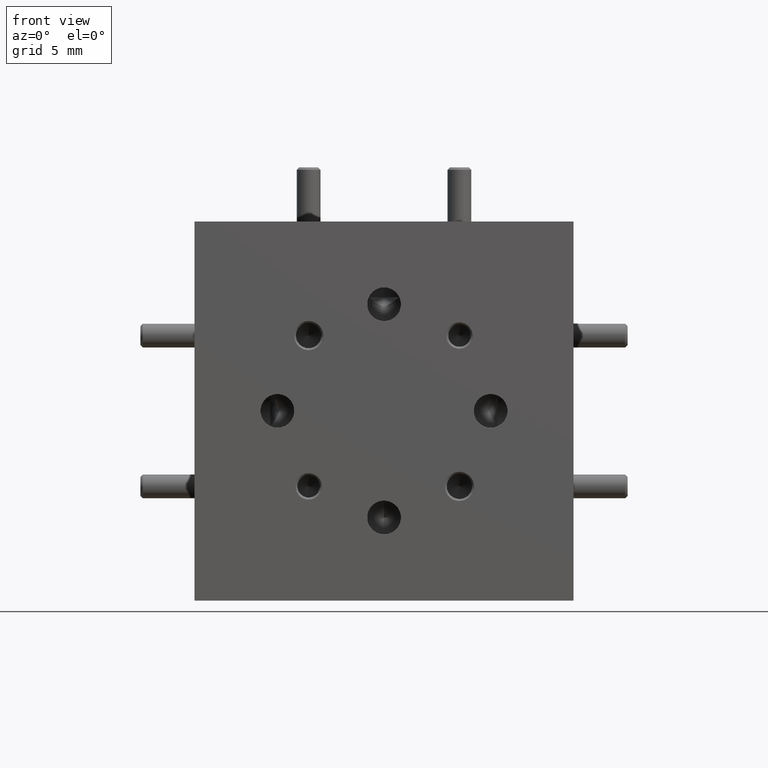
[diagram: clean part render]
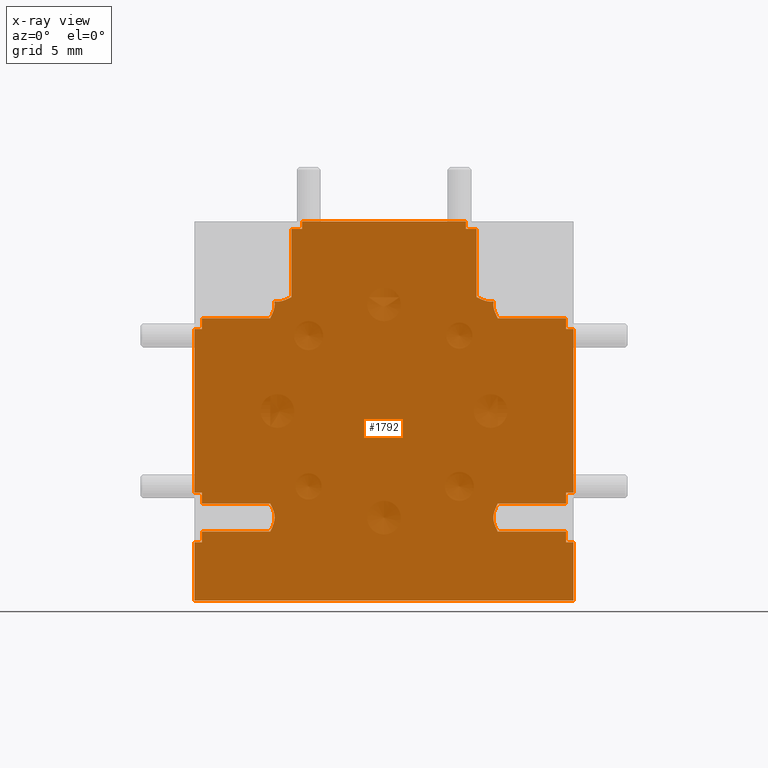
[diagram: x-ray — body ghosted, one internal face saturated and labeled with its STEP entity id]
A machine part, front view, then the same camera in x-ray: the body is ghosted and one INTERNAL B-rep face — a face not visible from any outside direction — is saturated and labeled: STEP entity #1792.
In plain terms, the highlighted planar face has unit normal (0, 1, 0).
Its self-contained STEP definition (entity closure, byte-faithful):
#15 = CARTESIAN_POINT ( 'NONE',  ( -0.4800000000000001500, 0.4749999999999999800, -0.3466334841531100200 ) ) ;
#36 = CARTESIAN_POINT ( 'NONE',  ( 0.2965307483112154000, 0.4749999999999999800, 0.2514155878293677900 ) ) ;
#54 = B_SPLINE_CURVE_WITH_KNOTS ( 'NONE', 3,
 ( #6234, #6325, #7768, #3978, #3907, #1699, #36, #9321 ),
 .UNSPECIFIED., .F., .F.,
 ( 4, 2, 2, 4 ),
 ( 5.030097432650708100E-011, 0.0002965783494396781300, 0.0005931566485783819300, 0.001186313246855788700 ),
 .UNSPECIFIED. ) ;
#109 = DIRECTION ( 'NONE',  ( 1.000000000000000000, 0.0000000000000000000, -0.0000000000000000000 ) ) ;
#146 = ORIENTED_EDGE ( 'NONE', *, *, #5803, .T. ) ;
#177 = CARTESIAN_POINT ( 'NONE',  ( -0.5000000000000001100, 0.4749999999999999800, 0.5000000000000000000 ) ) ;
#232 = CARTESIAN_POINT ( 'NONE',  ( -0.2882762222135522000, 0.4750000000000000300, -0.2747830409453189100 ) ) ;
#236 = CARTESIAN_POINT ( 'NONE',  ( -0.2158665158468881500, 0.4749999999999999800, 0.5000000000000005600 ) ) ;
#247 = VERTEX_POINT ( 'NONE', #15 ) ;
#308 = VECTOR ( 'NONE', #2067, 39.37007874015748100 ) ;
#313 = ORIENTED_EDGE ( 'NONE', *, *, #6894, .F. ) ;
#324 = VECTOR ( 'NONE', #109, 39.37007874015748100 ) ;
#335 = EDGE_CURVE ( 'NONE', #3954, #4123, #3824, .T. ) ;
#368 = ORIENTED_EDGE ( 'NONE', *, *, #3213, .T. ) ;
#385 = CARTESIAN_POINT ( 'NONE',  ( -0.4800000000000001500, 0.4749999999999999800, -0.2812499999999999400 ) ) ;
#447 = EDGE_CURVE ( 'NONE', #5707, #1050, #9416, .T. ) ;
#500 = CARTESIAN_POINT ( 'NONE',  ( -0.2584573353643245800, 0.4750000000000000300, 0.2932285807804885200 ) ) ;
#531 = CARTESIAN_POINT ( 'NONE',  ( -0.2889859517562664600, 0.4749999973121388200, 0.2889859535169426700 ) ) ;
#533 = ORIENTED_EDGE ( 'NONE', *, *, #2202, .F. ) ;
#549 = DIRECTION ( 'NONE',  ( -1.000000000000000000, -0.0000000000000000000, 0.0000000000000000000 ) ) ;
#606 = CARTESIAN_POINT ( 'NONE',  ( 0.5000000000000000000, 0.4749999999999999800, 0.2158665158468898400 ) ) ;
#643 = EDGE_CURVE ( 'NONE', #7085, #247, #4660, .T. ) ;
#712 = ORIENTED_EDGE ( 'NONE', *, *, #4511, .T. ) ;
#722 = CARTESIAN_POINT ( 'NONE',  ( 0.2734059510794968300, 0.4749999999999999800, 0.2888356291180106400 ) ) ;
#759 = CARTESIAN_POINT ( 'NONE',  ( -0.2158665158468882100, 0.4749999999999999800, 0.0000000000000000000 ) ) ;
#791 = AXIS2_PLACEMENT_3D ( 'NONE', #7490, #3682, #4484 ) ;
#814 = VERTEX_POINT ( 'NONE', #3378 ) ;
#896 = EDGE_CURVE ( 'NONE', #3000, #2679, #2588, .T. ) ;
#915 = EDGE_CURVE ( 'NONE', #814, #9484, #7696, .T. ) ;
#962 = DIRECTION ( 'NONE',  ( -0.0000000000000000000, 0.0000000000000000000, -1.000000000000000000 ) ) ;
#1003 = ORIENTED_EDGE ( 'NONE', *, *, #6435, .T. ) ;
#1018 = VERTEX_POINT ( 'NONE', #5859 ) ;
#1032 = CARTESIAN_POINT ( 'NONE',  ( -0.4799999999999998700, 0.4749999999999999800, 0.2158665158468901500 ) ) ;
#1050 = VERTEX_POINT ( 'NONE', #531 ) ;
#1060 = ORIENTED_EDGE ( 'NONE', *, *, #643, .T. ) ;
#1091 = CARTESIAN_POINT ( 'NONE',  ( 0.4799999999999998700, 0.4749999999999999800, -0.2812500000000002800 ) ) ;
#1114 = VERTEX_POINT ( 'NONE', #7969 ) ;
#1141 = ORIENTED_EDGE ( 'NONE', *, *, #447, .T. ) ;
#1142 = DIRECTION ( 'NONE',  ( 1.000000000000000000, 0.0000000000000000000, -0.0000000000000000000 ) ) ;
#1164 = ORIENTED_EDGE ( 'NONE', *, *, #9252, .T. ) ;
#1183 = PLANE ( 'NONE',  #791 ) ;
#1212 = VECTOR ( 'NONE', #1142, 39.37007874015748100 ) ;
#1231 = CARTESIAN_POINT ( 'NONE',  ( 0.0000000000000000000, 0.4749999999999999800, -0.2444362797316007000 ) ) ;
#1246 = VERTEX_POINT ( 'NONE', #2008 ) ;
#1281 = CARTESIAN_POINT ( 'NONE',  ( 0.0000000000000000000, 0.4749999999999999800, -0.3466334841531100200 ) ) ;
#1293 = VERTEX_POINT ( 'NONE', #2811 ) ;
#1324 = CARTESIAN_POINT ( 'NONE',  ( -0.5000000000000001100, 0.4749999999999999800, -0.3466334841531100700 ) ) ;
#1350 = CARTESIAN_POINT ( 'NONE',  ( 0.4799999999999998700, 0.4749999999999999800, -0.2812500000000002800 ) ) ;
#1379 = VERTEX_POINT ( 'NONE', #5315 ) ;
#1410 = DIRECTION ( 'NONE',  ( 1.000000000000000000, 0.0000000000000000000, -0.0000000000000000000 ) ) ;
#1444 = VERTEX_POINT ( 'NONE', #4524 ) ;
#1456 = CARTESIAN_POINT ( 'NONE',  ( 0.0000000000000000000, 0.4749999999999999800, 0.2444362797316000100 ) ) ;
#1470 = DIRECTION ( 'NONE',  ( -0.0000000000000000000, -0.0000000000000000000, 1.000000000000000000 ) ) ;
#1495 = CARTESIAN_POINT ( 'NONE',  ( 0.2889859535161682400, 0.4749999973136741500, 0.2889859517562761200 ) ) ;
#1523 = LINE ( 'NONE', #7007, #9536 ) ;
#1540 = ORIENTED_EDGE ( 'NONE', *, *, #1835, .T. ) ;
#1568 = VECTOR ( 'NONE', #2561, 39.37007874015748100 ) ;
#1609 = VERTEX_POINT ( 'NONE', #8719 ) ;
#1622 = VERTEX_POINT ( 'NONE', #7096 ) ;
#1636 = CARTESIAN_POINT ( 'NONE',  ( 0.4800000000000001500, 0.4749999999999999800, 0.2812499999999999400 ) ) ;
#1662 = EDGE_CURVE ( 'NONE', #9831, #9142, #4718, .T. ) ;
#1680 = CARTESIAN_POINT ( 'NONE',  ( 0.4800000000000001500, 0.4749999999999999800, 0.2444362797316001200 ) ) ;
#1697 = VECTOR ( 'NONE', #1410, 39.37007874015748100 ) ;
#1699 = CARTESIAN_POINT ( 'NONE',  ( 0.2932260958503608600, 0.4750000000000002000, 0.2584754680099929900 ) ) ;
#1700 = DIRECTION ( 'NONE',  ( 4.996003610813203400E-016, -0.0000000000000000000, 1.000000000000000000 ) ) ;
#1709 = DIRECTION ( 'NONE',  ( -0.0000000000000000000, -0.0000000000000000000, 1.000000000000000000 ) ) ;
#1721 = CARTESIAN_POINT ( 'NONE',  ( 0.0000000000000000000, 0.4749999999999999800, 0.2158665158468898400 ) ) ;
#1771 = DIRECTION ( 'NONE',  ( 1.000000000000000000, 0.0000000000000000000, -0.0000000000000000000 ) ) ;
#1792 = ADVANCED_FACE ( 'NONE', ( #7084 ), #1183, .T. ) ;
#1794 = CARTESIAN_POINT ( 'NONE',  ( 0.2882762222114258500, 0.4750000000000000300, -0.2877169590550895900 ) ) ;
#1835 = EDGE_CURVE ( 'NONE', #1622, #8896, #2372, .T. ) ;
#1842 = ORIENTED_EDGE ( 'NONE', *, *, #2983, .T. ) ;
#1862 = CARTESIAN_POINT ( 'NONE',  ( 0.0000000000000000000, 0.4749999999999999800, -0.3466334841531103500 ) ) ;
#1918 = CARTESIAN_POINT ( 'NONE',  ( 0.0000000000000000000, 0.4749999999999999800, 0.2158665158468901500 ) ) ;
#1919 = LINE ( 'NONE', #1918, #2629 ) ;
#1981 = VECTOR ( 'NONE', #3218, 39.37007874015748100 ) ;
#1990 = CARTESIAN_POINT ( 'NONE',  ( -0.2811730579717849300, 0.4750000000000000300, 0.2881066426653378600 ) ) ;
#2008 = CARTESIAN_POINT ( 'NONE',  ( 0.2158665158468919000, 0.4749999999999999800, 0.4999999999999994400 ) ) ;
#2067 = DIRECTION ( 'NONE',  ( -1.000000000000000000, 4.754804601713898200E-080, 2.548470463970273200E-048 ) ) ;
#2097 = ORIENTED_EDGE ( 'NONE', *, *, #1662, .T. ) ;
#2107 = EDGE_LOOP ( 'NONE', ( #7987, #5363, #3861, #2097, #146, #6285, #7414, #1842, #1540, #4601, #1060, #9336, #9773, #4486, #1164, #313, #3453, #6697, #1003, #533, #5482, #1141, #368, #4151, #9938, #8706, #712, #7374, #8207, #2343, #7492, #2212, #5293, #3112, #2655, #7499 ) ) ;
#2120 = VECTOR ( 'NONE', #9698, 39.37007874015748100 ) ;
#2124 = CARTESIAN_POINT ( 'NONE',  ( -0.2851232871648208800, 0.4749999973126311500, 0.2882998624944884700 ) ) ;
#2127 = DIRECTION ( 'NONE',  ( 1.000000000000000000, 0.0000000000000000000, -0.0000000000000000000 ) ) ;
#2161 = CARTESIAN_POINT ( 'NONE',  ( 0.2444362797314943200, 0.4749999999999999800, 0.2999999999993908100 ) ) ;
#2169 = VERTEX_POINT ( 'NONE', #6470 ) ;
#2184 = CARTESIAN_POINT ( 'NONE',  ( 0.2851209031582160300, 0.4749999999999999800, 0.2882994405974652100 ) ) ;
#2202 = EDGE_CURVE ( 'NONE', #5815, #8425, #1523, .T. ) ;
#2212 = ORIENTED_EDGE ( 'NONE', *, *, #7909, .T. ) ;
#2244 = CARTESIAN_POINT ( 'NONE',  ( 0.2695624714465885100, 0.4750000000000000300, 0.2897348400217396000 ) ) ;
#2281 = VECTOR ( 'NONE', #8699, 39.37007874015748100 ) ;
#2320 = DIRECTION ( 'NONE',  ( -0.0000000000000000000, -0.0000000000000000000, -1.000000000000000000 ) ) ;
#2343 = ORIENTED_EDGE ( 'NONE', *, *, #335, .T. ) ;
#2352 = VECTOR ( 'NONE', #5791, 39.37007874015748100 ) ;
#2372 = LINE ( 'NONE', #3721, #308 ) ;
#2461 = LINE ( 'NONE', #3633, #8418 ) ;
#2481 = CARTESIAN_POINT ( 'NONE',  ( 0.2444362797316024500, 0.4749999999999999800, 0.4799999999999989300 ) ) ;
#2487 = CARTESIAN_POINT ( 'NONE',  ( 0.2444362797316024800, 0.4749999999999999800, 0.0000000000000000000 ) ) ;
#2561 = DIRECTION ( 'NONE',  ( 1.000000000000000000, 0.0000000000000000000, -0.0000000000000000000 ) ) ;
#2574 = CARTESIAN_POINT ( 'NONE',  ( 0.4799999999999998700, 0.4749999999999999800, -0.3180637202683999600 ) ) ;
#2588 = LINE ( 'NONE', #7279, #2352 ) ;
#2594 = VECTOR ( 'NONE', #2320, 39.37007874015748100 ) ;
#2595 = VECTOR ( 'NONE', #2127, 39.37007874015748100 ) ;
#2607 = CARTESIAN_POINT ( 'NONE',  ( -0.2943414353704892400, 0.4750000000000000300, -0.2561582391346087200 ) ) ;
#2612 = CARTESIAN_POINT ( 'NONE',  ( -0.2444362797315982300, 0.4749999999999999800, 0.0000000000000000000 ) ) ;
#2629 = VECTOR ( 'NONE', #1771, 39.37007874015748100 ) ;
#2655 = ORIENTED_EDGE ( 'NONE', *, *, #5280, .T. ) ;
#2679 = VERTEX_POINT ( 'NONE', #4521 ) ;
#2795 = CARTESIAN_POINT ( 'NONE',  ( -0.2734329452104121700, 0.4749999999999999200, 0.2888319159831255200 ) ) ;
#2811 = CARTESIAN_POINT ( 'NONE',  ( -0.2444362797315983400, 0.4749999999999999800, 0.4800000000000010400 ) ) ;
#2823 = CARTESIAN_POINT ( 'NONE',  ( 0.2999999999994885100, 0.4749999999999999800, -0.3180637202686541500 ) ) ;
#2983 = EDGE_CURVE ( 'NONE', #4914, #1622, #3444, .T. ) ;
#2988 = CARTESIAN_POINT ( 'NONE',  ( 0.2811737781907688300, 0.4750000000000000300, 0.2881053954815399100 ) ) ;
#3000 = VERTEX_POINT ( 'NONE', #5627 ) ;
#3021 = VECTOR ( 'NONE', #1709, 39.37007874015748100 ) ;
#3053 = DIRECTION ( 'NONE',  ( -4.996003610813203400E-016, -0.0000000000000000000, -1.000000000000000000 ) ) ;
#3112 = ORIENTED_EDGE ( 'NONE', *, *, #7240, .F. ) ;
#3115 = CARTESIAN_POINT ( 'NONE',  ( -0.2999999999997077800, 0.4749999999999999800, -0.2444362797314547100 ) ) ;
#3213 = EDGE_CURVE ( 'NONE', #1050, #5181, #6143, .T. ) ;
#3218 = DIRECTION ( 'NONE',  ( -0.0000000000000000000, 0.0000000000000000000, -1.000000000000000000 ) ) ;
#3249 = CARTESIAN_POINT ( 'NONE',  ( 0.2882902619958234200, 0.4749999999999999800, -0.2746933341128315900 ) ) ;
#3276 = VECTOR ( 'NONE', #3464, 39.37007874015748100 ) ;
#3290 = CARTESIAN_POINT ( 'NONE',  ( -0.2943515129948872100, 0.4750000000000000300, -0.3063613200030325100 ) ) ;
#3378 = CARTESIAN_POINT ( 'NONE',  ( 0.4799999999999998700, 0.4749999999999999800, -0.2444362797316006800 ) ) ;
#3444 = LINE ( 'NONE', #3986, #8067 ) ;
#3453 = ORIENTED_EDGE ( 'NONE', *, *, #896, .T. ) ;
#3464 = DIRECTION ( 'NONE',  ( 1.000000000000000000, -0.0000000000000000000, -1.365923996832131600E-016 ) ) ;
#3508 = CARTESIAN_POINT ( 'NONE',  ( -0.2881080719076170600, 0.4749999999999999200, 0.2811576399475214600 ) ) ;
#3509 = CARTESIAN_POINT ( 'NONE',  ( -0.4799999999999998700, 0.4749999999999999800, 0.2444362797316006800 ) ) ;
#3633 = CARTESIAN_POINT ( 'NONE',  ( 0.0000000000000000000, 0.4749999999999999800, -0.2444362797316000100 ) ) ;
#3664 = CARTESIAN_POINT ( 'NONE',  ( 0.0000000000000000000, 0.4749999999999999800, 0.2444362797316006800 ) ) ;
#3665 = CARTESIAN_POINT ( 'NONE',  ( -0.2812499999999982800, 0.4749999999999999800, 0.4800000000000010900 ) ) ;
#3682 = DIRECTION ( 'NONE',  ( 0.0000000000000000000, 1.000000000000000000, 0.0000000000000000000 ) ) ;
#3695 = LINE ( 'NONE', #4549, #2594 ) ;
#3721 = CARTESIAN_POINT ( 'NONE',  ( 0.4999999999999998300, 0.4749999999999999800, -0.5000000000000001100 ) ) ;
#3824 = LINE ( 'NONE', #2487, #9534 ) ;
#3861 = ORIENTED_EDGE ( 'NONE', *, *, #6453, .T. ) ;
#3907 = CARTESIAN_POINT ( 'NONE',  ( 0.2897333410471743500, 0.4749999999999999200, 0.2695702043435717600 ) ) ;
#3954 = VERTEX_POINT ( 'NONE', #2481 ) ;
#3978 = CARTESIAN_POINT ( 'NONE',  ( 0.2888321571354500200, 0.4749999999999999800, 0.2734181766286287700 ) ) ;
#3986 = CARTESIAN_POINT ( 'NONE',  ( 0.4999999999999998300, 0.4749999999999999800, 0.4999999999999998300 ) ) ;
#4008 = CARTESIAN_POINT ( 'NONE',  ( -0.2999999999988587900, 0.4749999999999999800, 0.2444362797313303400 ) ) ;
#4095 = CARTESIAN_POINT ( 'NONE',  ( -0.2971016281335604500, 0.4749999999999999800, -0.2502671135976957100 ) ) ;
#4123 = VERTEX_POINT ( 'NONE', #2161 ) ;
#4125 = CARTESIAN_POINT ( 'NONE',  ( -0.2971060299615609400, 0.4750000000002117500, -0.3122417418314833400 ) ) ;
#4147 = CARTESIAN_POINT ( 'NONE',  ( -0.4800000000000001500, 0.4749999999999999800, -0.2444362797316001200 ) ) ;
#4151 = ORIENTED_EDGE ( 'NONE', *, *, #8925, .T. ) ;
#4205 = CARTESIAN_POINT ( 'NONE',  ( 0.4999999999999998300, 0.4749999999999999800, 0.4999999999999998300 ) ) ;
#4258 = EDGE_CURVE ( 'NONE', #1018, #9003, #5569, .T. ) ;
#4267 = LINE ( 'NONE', #6261, #1981 ) ;
#4285 = LINE ( 'NONE', #2612, #7695 ) ;
#4288 = EDGE_CURVE ( 'NONE', #7516, #247, #9367, .T. ) ;
#4294 = VECTOR ( 'NONE', #1470, 39.37007874015748100 ) ;
#4331 = VECTOR ( 'NONE', #9827, 39.37007874015748100 ) ;
#4342 = LINE ( 'NONE', #6413, #5317 ) ;
#4484 = DIRECTION ( 'NONE',  ( 0.0000000000000000000, -0.0000000000000000000, 1.000000000000000000 ) ) ;
#4486 = ORIENTED_EDGE ( 'NONE', *, *, #7974, .T. ) ;
#4511 = EDGE_CURVE ( 'NONE', #9003, #1246, #7887, .T. ) ;
#4521 = CARTESIAN_POINT ( 'NONE',  ( -0.5000000000000001100, 0.4749999999999999800, -0.2158665158468898400 ) ) ;
#4522 = CARTESIAN_POINT ( 'NONE',  ( 0.2999999999993621100, 0.4749999999999999800, -0.2444362797316005900 ) ) ;
#4524 = CARTESIAN_POINT ( 'NONE',  ( 0.2999999999997082200, 0.4749999999999999800, 0.2444362797314546800 ) ) ;
#4549 = CARTESIAN_POINT ( 'NONE',  ( 0.4999999999999998300, 0.4749999999999999800, 0.4999999999999998300 ) ) ;
#4574 = LINE ( 'NONE', #1231, #4331 ) ;
#4601 = ORIENTED_EDGE ( 'NONE', *, *, #7389, .T. ) ;
#4638 = LINE ( 'NONE', #5951, #7050 ) ;
#4660 = LINE ( 'NONE', #1281, #2595 ) ;
#4662 = B_SPLINE_CURVE_WITH_KNOTS ( 'NONE', 3,
 ( #6031, #6880, #6811, #2244, #722, #2988, #2184, #1495 ),
 .UNSPECIFIED., .F., .F.,
 ( 4, 2, 2, 4 ),
 ( -0.0009948645159987275000, -0.0003987811205067988400, -0.0001007394227608344500, 0.0001973022749851298300 ),
 .UNSPECIFIED. ) ;
#4688 = EDGE_CURVE ( 'NONE', #5815, #5707, #9358, .T. ) ;
#4718 = B_SPLINE_CURVE_WITH_KNOTS ( 'NONE', 3,
 ( #6386, #8820, #9496, #8748, #3249, #1794, #8780, #7889, #9567, #4802 ),
 .UNSPECIFIED., .F., .F.,
 ( 4, 2, 2, 2, 4 ),
 ( 7.684306962534778300E-015, 0.0004943914726955463900, 0.0009887829453834086100, 0.001483174418071270600, 0.001977565890759132800 ),
 .UNSPECIFIED. ) ;
#4738 = CARTESIAN_POINT ( 'NONE',  ( 0.4799999999999998700, 0.4749999999999999800, -0.2158665158468901500 ) ) ;
#4754 = DIRECTION ( 'NONE',  ( -0.0000000000000000000, -0.0000000000000000000, -1.000000000000000000 ) ) ;
#4766 = DIRECTION ( 'NONE',  ( -1.000000000000000000, 4.859094144607203300E-051, -4.403753140078571300E-033 ) ) ;
#4802 = CARTESIAN_POINT ( 'NONE',  ( 0.2999999999994885100, 0.4749999999999999800, -0.3180637202686541500 ) ) ;
#4834 = LINE ( 'NONE', #7931, #7758 ) ;
#4914 = VERTEX_POINT ( 'NONE', #8258 ) ;
#4947 = CARTESIAN_POINT ( 'NONE',  ( 0.2889859535161682400, 0.4749999973136741500, 0.2889859517562761200 ) ) ;
#4967 = DIRECTION ( 'NONE',  ( 1.000000000000000000, 0.0000000000000000000, -0.0000000000000000000 ) ) ;
#4998 = CARTESIAN_POINT ( 'NONE',  ( -0.2965298592435343700, 0.4750000000002022000, 0.2514173764209481400 ) ) ;
#5073 = EDGE_CURVE ( 'NONE', #4123, #5391, #4662, .T. ) ;
#5181 = VERTEX_POINT ( 'NONE', #5470 ) ;
#5280 = EDGE_CURVE ( 'NONE', #1609, #7104, #7126, .T. ) ;
#5293 = ORIENTED_EDGE ( 'NONE', *, *, #6204, .T. ) ;
#5294 = EDGE_CURVE ( 'NONE', #3954, #7752, #4834, .T. ) ;
#5315 = CARTESIAN_POINT ( 'NONE',  ( 0.4999999999999998300, 0.4749999999999999800, -0.2158665158468901200 ) ) ;
#5317 = VECTOR ( 'NONE', #4967, 39.37007874015748100 ) ;
#5344 = EDGE_CURVE ( 'NONE', #1114, #4914, #7247, .T. ) ;
#5352 = CARTESIAN_POINT ( 'NONE',  ( -0.4800000000000001500, 0.4749999999999999800, -0.2812499999999999400 ) ) ;
#5363 = ORIENTED_EDGE ( 'NONE', *, *, #915, .F. ) ;
#5386 = DIRECTION ( 'NONE',  ( -4.996003610813203400E-016, -0.0000000000000000000, -1.000000000000000000 ) ) ;
#5390 = CARTESIAN_POINT ( 'NONE',  ( 0.2158665158468919000, 0.4749999999999999800, 0.4799999999999990400 ) ) ;
#5391 = VERTEX_POINT ( 'NONE', #4947 ) ;
#5470 = CARTESIAN_POINT ( 'NONE',  ( -0.2444362797316439700, 0.4749999999999999800, 0.3000000000000930300 ) ) ;
#5482 = ORIENTED_EDGE ( 'NONE', *, *, #4688, .T. ) ;
#5569 = LINE ( 'NONE', #759, #5816 ) ;
#5627 = CARTESIAN_POINT ( 'NONE',  ( -0.4800000000000001500, 0.4749999999999999800, -0.2158665158468898400 ) ) ;
#5648 = LINE ( 'NONE', #385, #9443 ) ;
#5707 = VERTEX_POINT ( 'NONE', #4008 ) ;
#5791 = DIRECTION ( 'NONE',  ( -1.000000000000000000, -0.0000000000000000000, 0.0000000000000000000 ) ) ;
#5803 = EDGE_CURVE ( 'NONE', #9142, #6431, #4342, .T. ) ;
#5809 = CARTESIAN_POINT ( 'NONE',  ( -0.2999999999996355000, 0.4749999999999999800, -0.3180637202683994100 ) ) ;
#5815 = VERTEX_POINT ( 'NONE', #3509 ) ;
#5816 = VECTOR ( 'NONE', #6853, 39.37007874015748100 ) ;
#5859 = CARTESIAN_POINT ( 'NONE',  ( -0.2158665158468882100, 0.4749999999999999800, 0.4800000000000009800 ) ) ;
#5907 = CARTESIAN_POINT ( 'NONE',  ( -0.2514127674174855800, 0.4749999999999999800, 0.2965321502724900800 ) ) ;
#5951 = CARTESIAN_POINT ( 'NONE',  ( 0.0000000000000000000, 0.4749999999999999800, -0.2158665158468901500 ) ) ;
#6031 = CARTESIAN_POINT ( 'NONE',  ( 0.2444362797314943200, 0.4749999999999999800, 0.2999999999993908100 ) ) ;
#6033 = DIRECTION ( 'NONE',  ( -1.000000000000000000, 4.859094144607203300E-051, -4.403753140078571300E-033 ) ) ;
#6044 = LINE ( 'NONE', #177, #3021 ) ;
#6098 = VECTOR ( 'NONE', #6033, 39.37007874015748100 ) ;
#6143 = B_SPLINE_CURVE_WITH_KNOTS ( 'NONE', 3,
 ( #6652, #2124, #1990, #2795, #9800, #500, #5907, #6790 ),
 .UNSPECIFIED., .F., .F.,
 ( 4, 2, 2, 4 ),
 ( -0.0001958798430084314400, 9.983071773281184800E-005, 0.0003955412784740551400, 0.0009869623999565417100 ),
 .UNSPECIFIED. ) ;
#6204 = EDGE_CURVE ( 'NONE', #1444, #7368, #9829, .T. ) ;
#6234 = CARTESIAN_POINT ( 'NONE',  ( 0.2889859535161682400, 0.4749999973136741500, 0.2889859517562761200 ) ) ;
#6261 = CARTESIAN_POINT ( 'NONE',  ( 0.2158665158468919000, 0.4749999999999999800, 0.0000000000000000000 ) ) ;
#6285 = ORIENTED_EDGE ( 'NONE', *, *, #7693, .F. ) ;
#6325 = CARTESIAN_POINT ( 'NONE',  ( 0.2882962610954856700, 0.4749999999999999200, 0.2851030025587595900 ) ) ;
#6386 = CARTESIAN_POINT ( 'NONE',  ( 0.2999999999993621100, 0.4749999999999999800, -0.2444362797316005900 ) ) ;
#6413 = CARTESIAN_POINT ( 'NONE',  ( 0.0000000000000000000, 0.4749999999999999800, -0.3180637202684000200 ) ) ;
#6431 = VERTEX_POINT ( 'NONE', #2574 ) ;
#6435 = EDGE_CURVE ( 'NONE', #2169, #8425, #1919, .T. ) ;
#6453 = EDGE_CURVE ( 'NONE', #814, #9831, #4574, .T. ) ;
#6470 = CARTESIAN_POINT ( 'NONE',  ( -0.5000000000000000000, 0.4749999999999999800, 0.2158665158468901500 ) ) ;
#6515 = CARTESIAN_POINT ( 'NONE',  ( -0.2999999999988587900, 0.4749999999999999800, 0.2444362797313303400 ) ) ;
#6590 = EDGE_CURVE ( 'NONE', #7516, #9798, #6764, .T. ) ;
#6652 = CARTESIAN_POINT ( 'NONE',  ( -0.2889859517562664600, 0.4749999973121388200, 0.2889859535169426700 ) ) ;
#6697 = ORIENTED_EDGE ( 'NONE', *, *, #8206, .T. ) ;
#6764 = LINE ( 'NONE', #7784, #324 ) ;
#6790 = CARTESIAN_POINT ( 'NONE',  ( -0.2444362797316439700, 0.4749999999999999800, 0.3000000000000930300 ) ) ;
#6811 = CARTESIAN_POINT ( 'NONE',  ( 0.2584398289861439300, 0.4749999999999999200, 0.2932391927691131400 ) ) ;
#6853 = DIRECTION ( 'NONE',  ( 0.0000000000000000000, -0.0000000000000000000, 1.000000000000000000 ) ) ;
#6880 = CARTESIAN_POINT ( 'NONE',  ( 0.2514049735058764800, 0.4749999999999998700, 0.2965360244449808900 ) ) ;
#6894 = EDGE_CURVE ( 'NONE', #3000, #8403, #5648, .T. ) ;
#7007 = CARTESIAN_POINT ( 'NONE',  ( -0.4799999999999998700, 0.4749999999999999800, 0.2812500000000002800 ) ) ;
#7030 = VECTOR ( 'NONE', #5386, 39.37007874015748100 ) ;
#7050 = VECTOR ( 'NONE', #549, 39.37007874015748100 ) ;
#7057 = B_SPLINE_CURVE_WITH_KNOTS ( 'NONE', 3,
 ( #7944, #4125, #3290, #9581, #8043, #232, #8731, #2607, #4095, #8836 ),
 .UNSPECIFIED., .F., .F.,
 ( 4, 2, 2, 2, 4 ),
 ( 4.395732210971003900E-015, 0.0004943914726820852600, 0.0009887829453597749500, 0.001483174418037464500, 0.001977565890715154100 ),
 .UNSPECIFIED. ) ;
#7084 = FACE_OUTER_BOUND ( 'NONE', #2107, .T. ) ;
#7085 = VERTEX_POINT ( 'NONE', #1324 ) ;
#7096 = CARTESIAN_POINT ( 'NONE',  ( 0.4999999999999998300, 0.4749999999999999800, -0.5000000000000001100 ) ) ;
#7104 = VERTEX_POINT ( 'NONE', #606 ) ;
#7126 = LINE ( 'NONE', #1721, #1568 ) ;
#7240 = EDGE_CURVE ( 'NONE', #1609, #7368, #8950, .T. ) ;
#7247 = LINE ( 'NONE', #1862, #1212 ) ;
#7279 = CARTESIAN_POINT ( 'NONE',  ( 0.0000000000000000000, 0.4749999999999999800, -0.2158665158468898400 ) ) ;
#7332 = CARTESIAN_POINT ( 'NONE',  ( -0.2932237938067308000, 0.4749999999999998700, 0.2584667274920832700 ) ) ;
#7368 = VERTEX_POINT ( 'NONE', #1680 ) ;
#7373 = CARTESIAN_POINT ( 'NONE',  ( -0.2882984246575286400, 0.4749999999999997600, 0.2851151834209549300 ) ) ;
#7374 = ORIENTED_EDGE ( 'NONE', *, *, #9541, .T. ) ;
#7389 = EDGE_CURVE ( 'NONE', #8896, #7085, #6044, .T. ) ;
#7414 = ORIENTED_EDGE ( 'NONE', *, *, #5344, .T. ) ;
#7439 = DIRECTION ( 'NONE',  ( 4.996003610813203400E-016, -0.0000000000000000000, 1.000000000000000000 ) ) ;
#7487 = VECTOR ( 'NONE', #7439, 39.37007874015748100 ) ;
#7490 = CARTESIAN_POINT ( 'NONE',  ( 0.0000000000000000000, 0.4749999999999999800, 0.0000000000000000000 ) ) ;
#7492 = ORIENTED_EDGE ( 'NONE', *, *, #5073, .T. ) ;
#7499 = ORIENTED_EDGE ( 'NONE', *, *, #8663, .T. ) ;
#7516 = VERTEX_POINT ( 'NONE', #8019 ) ;
#7539 = DIRECTION ( 'NONE',  ( -1.000000000000000000, -0.0000000000000000000, 0.0000000000000000000 ) ) ;
#7693 = EDGE_CURVE ( 'NONE', #1114, #6431, #9809, .T. ) ;
#7695 = VECTOR ( 'NONE', #8048, 39.37007874015748100 ) ;
#7696 = LINE ( 'NONE', #1091, #2120 ) ;
#7752 = VERTEX_POINT ( 'NONE', #5390 ) ;
#7758 = VECTOR ( 'NONE', #4766, 39.37007874015748100 ) ;
#7768 = CARTESIAN_POINT ( 'NONE',  ( 0.2881040295139480900, 0.4749999999999999200, 0.2812131802806089300 ) ) ;
#7784 = CARTESIAN_POINT ( 'NONE',  ( 0.0000000000000000000, 0.4749999999999999800, -0.3180637202683993500 ) ) ;
#7887 = LINE ( 'NONE', #4205, #3276 ) ;
#7889 = CARTESIAN_POINT ( 'NONE',  ( 0.2943414353693116800, 0.4750000000000000300, -0.3063417608657148000 ) ) ;
#7909 = EDGE_CURVE ( 'NONE', #5391, #1444, #54, .T. ) ;
#7931 = CARTESIAN_POINT ( 'NONE',  ( 0.2812500000000019400, 0.4749999999999999800, 0.4799999999999989300 ) ) ;
#7944 = CARTESIAN_POINT ( 'NONE',  ( -0.2999999999996355000, 0.4749999999999999800, -0.3180637202683994100 ) ) ;
#7969 = CARTESIAN_POINT ( 'NONE',  ( 0.4799999999999998700, 0.4749999999999999800, -0.3466334841531103500 ) ) ;
#7974 = EDGE_CURVE ( 'NONE', #9798, #10006, #7057, .T. ) ;
#7987 = ORIENTED_EDGE ( 'NONE', *, *, #9774, .T. ) ;
#8019 = CARTESIAN_POINT ( 'NONE',  ( -0.4800000000000001500, 0.4749999999999999800, -0.3180637202683993500 ) ) ;
#8043 = CARTESIAN_POINT ( 'NONE',  ( -0.2882902619979964600, 0.4749999999999999800, -0.2878066658870737600 ) ) ;
#8048 = DIRECTION ( 'NONE',  ( 0.0000000000000000000, -0.0000000000000000000, 1.000000000000000000 ) ) ;
#8067 = VECTOR ( 'NONE', #4754, 39.37007874015748100 ) ;
#8206 = EDGE_CURVE ( 'NONE', #2679, #2169, #8443, .T. ) ;
#8207 = ORIENTED_EDGE ( 'NONE', *, *, #5294, .F. ) ;
#8258 = CARTESIAN_POINT ( 'NONE',  ( 0.4999999999999998300, 0.4749999999999999800, -0.3466334841531103500 ) ) ;
#8403 = VERTEX_POINT ( 'NONE', #4147 ) ;
#8418 = VECTOR ( 'NONE', #7539, 39.37007874015748100 ) ;
#8425 = VERTEX_POINT ( 'NONE', #1032 ) ;
#8443 = LINE ( 'NONE', #9952, #4294 ) ;
#8586 = VECTOR ( 'NONE', #1700, 39.37007874015748100 ) ;
#8663 = EDGE_CURVE ( 'NONE', #7104, #1379, #3695, .T. ) ;
#8699 = DIRECTION ( 'NONE',  ( 1.000000000000000000, 0.0000000000000000000, -0.0000000000000000000 ) ) ;
#8706 = ORIENTED_EDGE ( 'NONE', *, *, #4258, .T. ) ;
#8719 = CARTESIAN_POINT ( 'NONE',  ( 0.4800000000000001500, 0.4749999999999999800, 0.2158665158468898400 ) ) ;
#8731 = CARTESIAN_POINT ( 'NONE',  ( -0.2898926847421181600, 0.4749999999999999800, -0.2684080765287142300 ) ) ;
#8748 = CARTESIAN_POINT ( 'NONE',  ( 0.2899116864858361500, 0.4749999999999999200, -0.2683476178202053300 ) ) ;
#8780 = CARTESIAN_POINT ( 'NONE',  ( 0.2898926847402963900, 0.4749999999999999800, -0.2940919234716524200 ) ) ;
#8820 = CARTESIAN_POINT ( 'NONE',  ( 0.2971060299608455600, 0.4750000000003702900, -0.2502582581683046600 ) ) ;
#8836 = CARTESIAN_POINT ( 'NONE',  ( -0.2999999999997077800, 0.4749999999999999800, -0.2444362797314547100 ) ) ;
#8896 = VERTEX_POINT ( 'NONE', #9417 ) ;
#8925 = EDGE_CURVE ( 'NONE', #5181, #1293, #4285, .T. ) ;
#8950 = LINE ( 'NONE', #1636, #8586 ) ;
#9003 = VERTEX_POINT ( 'NONE', #236 ) ;
#9058 = DIRECTION ( 'NONE',  ( -4.996003610813203400E-016, -0.0000000000000000000, -1.000000000000000000 ) ) ;
#9142 = VERTEX_POINT ( 'NONE', #2823 ) ;
#9252 = EDGE_CURVE ( 'NONE', #10006, #8403, #2461, .T. ) ;
#9297 = EDGE_CURVE ( 'NONE', #1018, #1293, #9768, .T. ) ;
#9321 = CARTESIAN_POINT ( 'NONE',  ( 0.2999999999997082200, 0.4749999999999999800, 0.2444362797314546800 ) ) ;
#9336 = ORIENTED_EDGE ( 'NONE', *, *, #4288, .F. ) ;
#9358 = LINE ( 'NONE', #3664, #1697 ) ;
#9367 = LINE ( 'NONE', #5352, #7030 ) ;
#9416 = B_SPLINE_CURVE_WITH_KNOTS ( 'NONE', 3,
 ( #6515, #4998, #7332, #9595, #9708, #3508, #7373, #9736 ),
 .UNSPECIFIED., .F., .F.,
 ( 4, 2, 2, 4 ),
 ( 5.748473994511076000E-015, 0.0005927186916132264300, 0.0008890780374169658600, 0.001185437383220705300 ),
 .UNSPECIFIED. ) ;
#9417 = CARTESIAN_POINT ( 'NONE',  ( -0.5000000000000001100, 0.4749999999999999800, -0.5000000000000001100 ) ) ;
#9443 = VECTOR ( 'NONE', #9058, 39.37007874015748100 ) ;
#9484 = VERTEX_POINT ( 'NONE', #4738 ) ;
#9496 = CARTESIAN_POINT ( 'NONE',  ( 0.2943515129936398700, 0.4749999999999999800, -0.2561386799967978500 ) ) ;
#9534 = VECTOR ( 'NONE', #962, 39.37007874015748100 ) ;
#9536 = VECTOR ( 'NONE', #3053, 39.37007874015748100 ) ;
#9541 = EDGE_CURVE ( 'NONE', #1246, #7752, #4267, .T. ) ;
#9567 = CARTESIAN_POINT ( 'NONE',  ( 0.2971016281327448200, 0.4749999999999999800, -0.3122328864025707400 ) ) ;
#9581 = CARTESIAN_POINT ( 'NONE',  ( -0.2899116864877343000, 0.4749999999999999200, -0.2941523821796880300 ) ) ;
#9595 = CARTESIAN_POINT ( 'NONE',  ( -0.2897129103628043900, 0.4749999999999999200, 0.2696432030200705500 ) ) ;
#9698 = DIRECTION ( 'NONE',  ( 4.996003610813203400E-016, -0.0000000000000000000, 1.000000000000000000 ) ) ;
#9708 = CARTESIAN_POINT ( 'NONE',  ( -0.2888305192292243100, 0.4749999999999999800, 0.2734480165511303200 ) ) ;
#9736 = CARTESIAN_POINT ( 'NONE',  ( -0.2889859517562664600, 0.4749999973121388200, 0.2889859535169426700 ) ) ;
#9768 = LINE ( 'NONE', #3665, #6098 ) ;
#9773 = ORIENTED_EDGE ( 'NONE', *, *, #6590, .T. ) ;
#9774 = EDGE_CURVE ( 'NONE', #1379, #9484, #4638, .T. ) ;
#9798 = VERTEX_POINT ( 'NONE', #5809 ) ;
#9800 = CARTESIAN_POINT ( 'NONE',  ( -0.2696230576904457600, 0.4749999999999999200, 0.2897183234017630700 ) ) ;
#9809 = LINE ( 'NONE', #1350, #7487 ) ;
#9827 = DIRECTION ( 'NONE',  ( -1.000000000000000000, -0.0000000000000000000, 0.0000000000000000000 ) ) ;
#9829 = LINE ( 'NONE', #1456, #2281 ) ;
#9831 = VERTEX_POINT ( 'NONE', #4522 ) ;
#9938 = ORIENTED_EDGE ( 'NONE', *, *, #9297, .F. ) ;
#9952 = CARTESIAN_POINT ( 'NONE',  ( -0.5000000000000001100, 0.4749999999999999800, 0.5000000000000000000 ) ) ;
#10006 = VERTEX_POINT ( 'NONE', #3115 ) ;